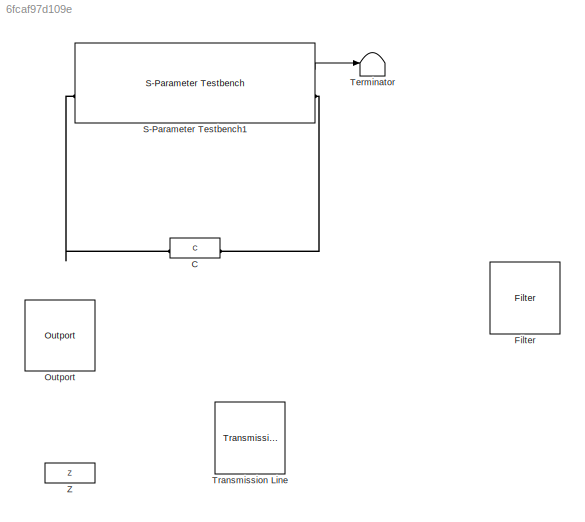
MODEL slx_6fcaf97d109e
KIND model
CONFIG AbsTol = auto
CONFIG EnableMultiTasking = off
CONFIG FixedStep = auto
CONFIG MaxStep = auto
CONFIG MinStep = auto
CONFIG RelTol = 1e-3
CONFIG SampleTimeConstraint = Unconstrained
CONFIG SolverName = VariableStepAuto
CONFIG StartTime = 0.0
CONFIG StopFcn = a = smith(SParamObjOut,1,1);\na.LineWidth = 3;\na.Color = 'red';\n
CONFIG StopTime = 10e-6
BLOCK [Reference] C  REF=simrfV2elements/C
  SourceBlock = simrfV2elements/C
  SourceType = Capacitor
BLOCK [Reference] Filter  REF=simrfV2elements/Filter
  Commented = on
  SourceBlock = simrfV2elements/Filter
  SourceType = Filter
  UserDataPersistent = on
BLOCK [Reference] Outport  REF=simrfV2util1/Outport
  Commented = on
  SourceBlock = simrfV2util1/Outport
  SourceType = Outport
BLOCK [Reference] S-Parameter Testbench1  REF=simrfV2testbenches/S-Parameter
Testbench
  SourceBlock = simrfV2testbenches/S-Parameter\nTestbench
  SourceType = S-parameter Testbench
  UserDataPersistent = on
BLOCK [Terminator] Terminator
BLOCK [Reference] Transmission Line  REF=simrfV2elements/Transmission
Line
  Commented = on
  SourceBlock = simrfV2elements/Transmission\nLine
  SourceType = Transmission Line
  UserDataPersistent = on
BLOCK [Reference] Z  REF=simrfV2elements/Z
  Commented = on
  SourceBlock = simrfV2elements/Z
  SourceType = Impedance
LINE S-Parameter Testbench1:1 -> Terminator:1
PLINE C:LConn1 -- S-Parameter Testbench1:LConn1
PLINE C:RConn1 -- S-Parameter Testbench1:RConn1
